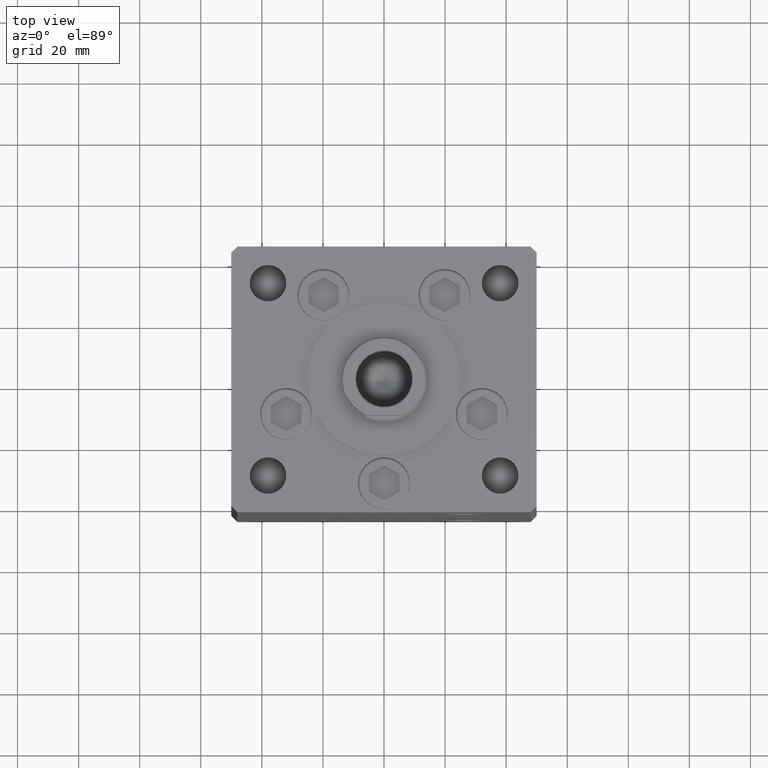
[diagram: clean part render]
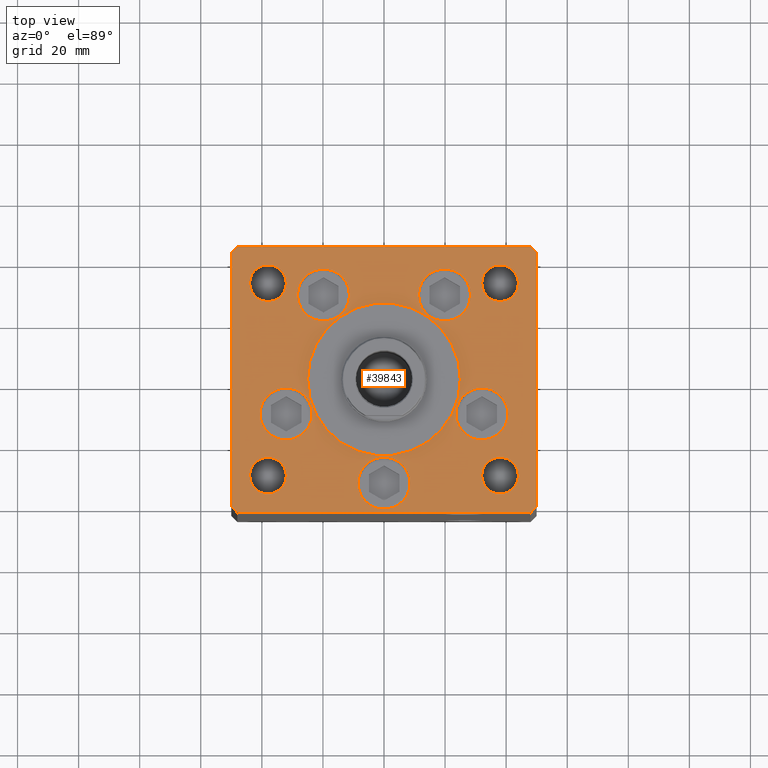
[diagram: same view with one face highlighted and labeled with its STEP entity id]
A machine part, top view. The second image highlights one B-rep face of the part: STEP entity #39843.
In plain terms, the highlighted planar face has unit normal (0, 0, 1).
Its self-contained STEP definition (entity closure, byte-faithful):
#237 = DIRECTION ( 'NONE',  ( 0.000000000000000000, 0.000000000000000000, 1.000000000000000000 ) ) ;
#358 = DIRECTION ( 'NONE',  ( 0.000000000000000000, 0.000000000000000000, 1.000000000000000000 ) ) ;
#467 = DIRECTION ( 'NONE',  ( 1.000000000000000000, 0.000000000000000000, 0.000000000000000000 ) ) ;
#783 = EDGE_CURVE ( 'NONE', #24141, #19406, #25090, .T. ) ;
#1551 = VERTEX_POINT ( 'NONE', #32221 ) ;
#1784 = CARTESIAN_POINT ( 'NONE',  ( 50.00000000000000000, -41.49999999999992895, 0.000000000000000000 ) ) ;
#1835 = LINE ( 'NONE', #18417, #18398 ) ;
#1898 = VECTOR ( 'NONE', #38704, 1000.000000000000000 ) ;
#2047 = CIRCLE ( 'NONE', #35691, 6.000000000000005329 ) ;
#2401 = EDGE_CURVE ( 'NONE', #30728, #21808, #27422, .T. ) ;
#2408 = CARTESIAN_POINT ( 'NONE',  ( 48.00000000000000711, -43.49999999999992184, 0.000000000000000000 ) ) ;
#2455 = CARTESIAN_POINT ( 'NONE',  ( -38.00000000000000711, -31.50000000000000711, 0.000000000000000000 ) ) ;
#2869 = CIRCLE ( 'NONE', #50055, 8.500000000000000000 ) ;
#3229 = VECTOR ( 'NONE', #40095, 1000.000000000000000 ) ;
#3270 = EDGE_LOOP ( 'NONE', ( #20591, #15648 ) ) ;
#3396 = LINE ( 'NONE', #34534, #9443 ) ;
#3548 = AXIS2_PLACEMENT_3D ( 'NONE', #32058, #4632, #44206 ) ;
#3675 = FACE_OUTER_BOUND ( 'NONE', #42859, .T. ) ;
#3767 = CIRCLE ( 'NONE', #20613, 8.500000000000000000 ) ;
#3935 = DIRECTION ( 'NONE',  ( 1.000000000000000000, 0.000000000000000000, 0.000000000000000000 ) ) ;
#4183 = LINE ( 'NONE', #47975, #28261 ) ;
#4185 = DIRECTION ( 'NONE',  ( 0.000000000000000000, 0.000000000000000000, 1.000000000000000000 ) ) ;
#4380 = EDGE_LOOP ( 'NONE', ( #36210, #42004 ) ) ;
#4571 = ORIENTED_EDGE ( 'NONE', *, *, #11015, .T. ) ;
#4632 = DIRECTION ( 'NONE',  ( 0.000000000000000000, 0.000000000000000000, 1.000000000000000000 ) ) ;
#4772 = VERTEX_POINT ( 'NONE', #26479 ) ;
#4913 = ORIENTED_EDGE ( 'NONE', *, *, #25855, .T. ) ;
#5127 = DIRECTION ( 'NONE',  ( 0.000000000000000000, 0.000000000000000000, 1.000000000000000000 ) ) ;
#5147 = VERTEX_POINT ( 'NONE', #27183 ) ;
#5630 = EDGE_CURVE ( 'NONE', #8002, #7348, #19282, .T. ) ;
#6395 = ORIENTED_EDGE ( 'NONE', *, *, #22541, .T. ) ;
#6766 = DIRECTION ( 'NONE',  ( 0.000000000000000000, 0.000000000000000000, 1.000000000000000000 ) ) ;
#7066 = EDGE_CURVE ( 'NONE', #19919, #14560, #33682, .T. ) ;
#7348 = VERTEX_POINT ( 'NONE', #49382 ) ;
#7559 = LINE ( 'NONE', #7815, #1898 ) ;
#7731 = ORIENTED_EDGE ( 'NONE', *, *, #21234, .T. ) ;
#7815 = CARTESIAN_POINT ( 'NONE',  ( -50.00000000000000000, -41.50000000000004263, 0.000000000000000000 ) ) ;
#7879 = CARTESIAN_POINT ( 'NONE',  ( -38.00000000000000000, 31.50000000000000000, 0.000000000000000000 ) ) ;
#7906 = VECTOR ( 'NONE', #31118, 1000.000000000000114 ) ;
#8002 = VERTEX_POINT ( 'NONE', #47818 ) ;
#8127 = CARTESIAN_POINT ( 'NONE',  ( -44.00000000000001421, -31.50000000000000711, 0.000000000000000000 ) ) ;
#8134 = FACE_BOUND ( 'NONE', #4380, .T. ) ;
#8341 = ORIENTED_EDGE ( 'NONE', *, *, #49753, .T. ) ;
#8891 = DIRECTION ( 'NONE',  ( 0.000000000000000000, 0.000000000000000000, 1.000000000000000000 ) ) ;
#8913 = FACE_BOUND ( 'NONE', #38173, .T. ) ;
#9317 = DIRECTION ( 'NONE',  ( -1.000000000000000000, 0.000000000000000000, 0.000000000000000000 ) ) ;
#9443 = VECTOR ( 'NONE', #10775, 1000.000000000000000 ) ;
#9852 = DIRECTION ( 'NONE',  ( -0.000000000000000000, -0.000000000000000000, -1.000000000000000000 ) ) ;
#10116 = DIRECTION ( 'NONE',  ( -1.000000000000000000, 0.000000000000000000, 0.000000000000000000 ) ) ;
#10239 = DIRECTION ( 'NONE',  ( 0.000000000000000000, 0.000000000000000000, 1.000000000000000000 ) ) ;
#10554 = DIRECTION ( 'NONE',  ( 1.000000000000000000, 0.000000000000000000, 0.000000000000000000 ) ) ;
#10635 = CARTESIAN_POINT ( 'NONE',  ( 38.00000000000000711, -31.50000000000000711, 0.000000000000000000 ) ) ;
#10715 = CARTESIAN_POINT ( 'NONE',  ( 32.05550741379015989, -11.33333333333332860, 0.000000000000000000 ) ) ;
#10775 = DIRECTION ( 'NONE',  ( 1.000000000000000000, 1.156482317317871331E-15, 0.000000000000000000 ) ) ;
#11015 = EDGE_CURVE ( 'NONE', #43100, #30728, #19241, .T. ) ;
#11112 = VERTEX_POINT ( 'NONE', #16338 ) ;
#11432 = ORIENTED_EDGE ( 'NONE', *, *, #36565, .F. ) ;
#11471 = ORIENTED_EDGE ( 'NONE', *, *, #41066, .F. ) ;
#11635 = EDGE_CURVE ( 'NONE', #50967, #17357, #2869, .T. ) ;
#11720 = AXIS2_PLACEMENT_3D ( 'NONE', #10715, #6766, #15443 ) ;
#11792 = CIRCLE ( 'NONE', #41281, 8.500000000000000000 ) ;
#11828 = PLANE ( 'NONE',  #30363 ) ;
#11873 = CARTESIAN_POINT ( 'NONE',  ( -28.32068048781375325, 27.62499999999998934, 0.000000000000000000 ) ) ;
#12681 = CARTESIAN_POINT ( 'NONE',  ( 50.00000000000000000, 41.50000000000000711, 0.000000000000000000 ) ) ;
#12810 = CARTESIAN_POINT ( 'NONE',  ( 47.99999999999999289, 43.50000000000000000, 0.000000000000000000 ) ) ;
#12834 = EDGE_CURVE ( 'NONE', #48207, #26313, #49974, .T. ) ;
#12871 = FACE_BOUND ( 'NONE', #30193, .T. ) ;
#13003 = EDGE_LOOP ( 'NONE', ( #48429, #46745 ) ) ;
#13147 = CARTESIAN_POINT ( 'NONE',  ( 0.000000000000000000, -6.938893903907228378E-15, 0.000000000000000000 ) ) ;
#13290 = DIRECTION ( 'NONE',  ( 1.000000000000000000, 0.000000000000000000, 0.000000000000000000 ) ) ;
#13302 = VERTEX_POINT ( 'NONE', #15292 ) ;
#13323 = VERTEX_POINT ( 'NONE', #18735 ) ;
#13999 = VECTOR ( 'NONE', #28894, 1000.000000000000000 ) ;
#14068 = DIRECTION ( 'NONE',  ( -0.000000000000000000, -0.000000000000000000, -1.000000000000000000 ) ) ;
#14304 = ORIENTED_EDGE ( 'NONE', *, *, #47535, .T. ) ;
#14444 = EDGE_CURVE ( 'NONE', #11112, #49208, #15415, .T. ) ;
#14560 = VERTEX_POINT ( 'NONE', #45561 ) ;
#14880 = ORIENTED_EDGE ( 'NONE', *, *, #5630, .F. ) ;
#15080 = CARTESIAN_POINT ( 'NONE',  ( 0.000000000000000000, -6.938893903907228378E-15, 0.000000000000000000 ) ) ;
#15286 = DIRECTION ( 'NONE',  ( 0.000000000000000000, 0.000000000000000000, 1.000000000000000000 ) ) ;
#15292 = CARTESIAN_POINT ( 'NONE',  ( -8.500000000000000000, -34.00000000000000000, 0.000000000000000000 ) ) ;
#15339 = DIRECTION ( 'NONE',  ( 1.000000000000000000, 0.000000000000000000, 0.000000000000000000 ) ) ;
#15402 = DIRECTION ( 'NONE',  ( 0.000000000000000000, 0.000000000000000000, 1.000000000000000000 ) ) ;
#15415 = CIRCLE ( 'NONE', #18809, 8.500000000000000000 ) ;
#15443 = DIRECTION ( 'NONE',  ( 1.000000000000000000, 0.000000000000000000, 0.000000000000000000 ) ) ;
#15648 = ORIENTED_EDGE ( 'NONE', *, *, #783, .F. ) ;
#15780 = DIRECTION ( 'NONE',  ( -0.000000000000000000, 0.000000000000000000, 1.000000000000000000 ) ) ;
#15931 = EDGE_CURVE ( 'NONE', #23175, #32980, #2047, .T. ) ;
#15935 = EDGE_CURVE ( 'NONE', #43349, #48165, #33166, .T. ) ;
#16309 = DIRECTION ( 'NONE',  ( -0.7071067811865536790, -0.7071067811865414665, 0.000000000000000000 ) ) ;
#16338 = CARTESIAN_POINT ( 'NONE',  ( -23.55550741379015989, -11.33333333333332860, 0.000000000000000000 ) ) ;
#16566 = ORIENTED_EDGE ( 'NONE', *, *, #14444, .F. ) ;
#16625 = CARTESIAN_POINT ( 'NONE',  ( 44.00000000000000000, 31.50000000000000000, 0.000000000000000000 ) ) ;
#16806 = CIRCLE ( 'NONE', #33649, 5.999999999999998224 ) ;
#16832 = DIRECTION ( 'NONE',  ( -0.000000000000000000, -0.000000000000000000, -1.000000000000000000 ) ) ;
#16976 = DIRECTION ( 'NONE',  ( -0.000000000000000000, -0.000000000000000000, -1.000000000000000000 ) ) ;
#16985 = CARTESIAN_POINT ( 'NONE',  ( 38.00000000000000000, 31.50000000000000000, 0.000000000000000000 ) ) ;
#17357 = VERTEX_POINT ( 'NONE', #11873 ) ;
#17519 = AXIS2_PLACEMENT_3D ( 'NONE', #44043, #15286, #27677 ) ;
#17840 = ORIENTED_EDGE ( 'NONE', *, *, #12834, .F. ) ;
#17883 = DIRECTION ( 'NONE',  ( 1.000000000000000000, 0.000000000000000000, 0.000000000000000000 ) ) ;
#18398 = VECTOR ( 'NONE', #41651, 999.9999999999998863 ) ;
#18417 = CARTESIAN_POINT ( 'NONE',  ( 50.00000000000000000, 41.50000000000000711, 0.000000000000000000 ) ) ;
#18682 = VECTOR ( 'NONE', #35206, 1000.000000000000000 ) ;
#18735 = CARTESIAN_POINT ( 'NONE',  ( -50.00000000000000000, -41.50000000000004263, 0.000000000000000000 ) ) ;
#18792 = EDGE_CURVE ( 'NONE', #49208, #11112, #3767, .T. ) ;
#18809 = AXIS2_PLACEMENT_3D ( 'NONE', #40289, #20496, #467 ) ;
#19058 = AXIS2_PLACEMENT_3D ( 'NONE', #13147, #49300, #17883 ) ;
#19241 = LINE ( 'NONE', #2408, #7906 ) ;
#19282 = CIRCLE ( 'NONE', #11720, 8.500000000000000000 ) ;
#19406 = VERTEX_POINT ( 'NONE', #23296 ) ;
#19677 = AXIS2_PLACEMENT_3D ( 'NONE', #26719, #14068, #22254 ) ;
#19744 = FACE_BOUND ( 'NONE', #34104, .T. ) ;
#19890 = DIRECTION ( 'NONE',  ( 0.000000000000000000, 0.000000000000000000, 1.000000000000000000 ) ) ;
#19891 = CIRCLE ( 'NONE', #19058, 25.00000000000000000 ) ;
#19919 = VERTEX_POINT ( 'NONE', #8127 ) ;
#20496 = DIRECTION ( 'NONE',  ( 0.000000000000000000, 0.000000000000000000, 1.000000000000000000 ) ) ;
#20591 = ORIENTED_EDGE ( 'NONE', *, *, #23187, .F. ) ;
#20613 = AXIS2_PLACEMENT_3D ( 'NONE', #33422, #8891, #48476 ) ;
#20782 = FACE_BOUND ( 'NONE', #3270, .T. ) ;
#20836 = CARTESIAN_POINT ( 'NONE',  ( -44.00000000000000000, 31.50000000000000000, 0.000000000000000000 ) ) ;
#20877 = AXIS2_PLACEMENT_3D ( 'NONE', #15080, #35402, #15339 ) ;
#21029 = ORIENTED_EDGE ( 'NONE', *, *, #28852, .T. ) ;
#21234 = EDGE_CURVE ( 'NONE', #4772, #1551, #4183, .T. ) ;
#21808 = VERTEX_POINT ( 'NONE', #12681 ) ;
#21856 = CARTESIAN_POINT ( 'NONE',  ( -38.00000000000000711, -31.50000000000000711, 0.000000000000000000 ) ) ;
#22171 = CARTESIAN_POINT ( 'NONE',  ( 19.82068048781374969, 27.62499999999998934, 0.000000000000000000 ) ) ;
#22254 = DIRECTION ( 'NONE',  ( -1.000000000000000000, 0.000000000000000000, 0.000000000000000000 ) ) ;
#22299 = DIRECTION ( 'NONE',  ( 1.000000000000000000, 0.000000000000000000, 0.000000000000000000 ) ) ;
#22541 = EDGE_CURVE ( 'NONE', #49991, #4772, #50007, .T. ) ;
#22867 = AXIS2_PLACEMENT_3D ( 'NONE', #22171, #39559, #10554 ) ;
#23175 = VERTEX_POINT ( 'NONE', #29227 ) ;
#23187 = EDGE_CURVE ( 'NONE', #19406, #24141, #19891, .T. ) ;
#23296 = CARTESIAN_POINT ( 'NONE',  ( -25.00000000000000000, -6.938893903907228378E-15, 0.000000000000000000 ) ) ;
#23553 = ORIENTED_EDGE ( 'NONE', *, *, #2401, .T. ) ;
#23649 = CARTESIAN_POINT ( 'NONE',  ( 48.00000000000000711, -43.49999999999992184, 0.000000000000000000 ) ) ;
#24141 = VERTEX_POINT ( 'NONE', #26496 ) ;
#24216 = CARTESIAN_POINT ( 'NONE',  ( 0.000000000000000000, 0.000000000000000000, 0.000000000000000000 ) ) ;
#24982 = ORIENTED_EDGE ( 'NONE', *, *, #42557, .F. ) ;
#25090 = CIRCLE ( 'NONE', #20877, 25.00000000000000000 ) ;
#25855 = EDGE_CURVE ( 'NONE', #32980, #23175, #29272, .T. ) ;
#25908 = ORIENTED_EDGE ( 'NONE', *, *, #7066, .F. ) ;
#26278 = CIRCLE ( 'NONE', #3548, 8.500000000000000000 ) ;
#26313 = VERTEX_POINT ( 'NONE', #26640 ) ;
#26479 = CARTESIAN_POINT ( 'NONE',  ( -48.00000000000000000, 43.49999999999997158, 0.000000000000000000 ) ) ;
#26496 = CARTESIAN_POINT ( 'NONE',  ( 25.00000000000000000, -3.877276906038844941E-15, 0.000000000000000000 ) ) ;
#26640 = CARTESIAN_POINT ( 'NONE',  ( 32.00000000000000000, 31.50000000000000000, 0.000000000000000000 ) ) ;
#26719 = CARTESIAN_POINT ( 'NONE',  ( -38.00000000000000000, 31.50000000000000000, 0.000000000000000000 ) ) ;
#27119 = EDGE_LOOP ( 'NONE', ( #30243, #25908 ) ) ;
#27183 = CARTESIAN_POINT ( 'NONE',  ( -48.00000000000000711, -43.50000000000002842, 0.000000000000000000 ) ) ;
#27422 = LINE ( 'NONE', #51713, #3229 ) ;
#27677 = DIRECTION ( 'NONE',  ( 1.000000000000000000, 0.000000000000000000, 0.000000000000000000 ) ) ;
#27799 = CARTESIAN_POINT ( 'NONE',  ( -32.00000000000000000, 31.50000000000000000, 0.000000000000000000 ) ) ;
#27913 = DIRECTION ( 'NONE',  ( 1.000000000000000000, 0.000000000000000000, 0.000000000000000000 ) ) ;
#28261 = VECTOR ( 'NONE', #16309, 1000.000000000000000 ) ;
#28317 = CARTESIAN_POINT ( 'NONE',  ( 38.00000000000000711, -31.50000000000000711, 0.000000000000000000 ) ) ;
#28852 = EDGE_CURVE ( 'NONE', #21808, #49991, #1835, .T. ) ;
#28894 = DIRECTION ( 'NONE',  ( -1.000000000000000000, -2.891205793294678326E-16, 0.000000000000000000 ) ) ;
#28951 = FACE_BOUND ( 'NONE', #30899, .T. ) ;
#29227 = CARTESIAN_POINT ( 'NONE',  ( 32.00000000000000000, -31.50000000000000711, 0.000000000000000000 ) ) ;
#29272 = CIRCLE ( 'NONE', #38551, 6.000000000000005329 ) ;
#29301 = AXIS2_PLACEMENT_3D ( 'NONE', #21856, #10239, #46391 ) ;
#29586 = ORIENTED_EDGE ( 'NONE', *, *, #43322, .T. ) ;
#30193 = EDGE_LOOP ( 'NONE', ( #35242, #36493 ) ) ;
#30243 = ORIENTED_EDGE ( 'NONE', *, *, #33497, .F. ) ;
#30363 = AXIS2_PLACEMENT_3D ( 'NONE', #24216, #15780, #27913 ) ;
#30728 = VERTEX_POINT ( 'NONE', #1784 ) ;
#30899 = EDGE_LOOP ( 'NONE', ( #16566, #38751 ) ) ;
#31118 = DIRECTION ( 'NONE',  ( 0.7071067811865474617, 0.7071067811865474617, 0.000000000000000000 ) ) ;
#31226 = CARTESIAN_POINT ( 'NONE',  ( 19.82068048781374969, 27.62499999999998934, 0.000000000000000000 ) ) ;
#32058 = CARTESIAN_POINT ( 'NONE',  ( 32.05550741379015989, -11.33333333333332860, 0.000000000000000000 ) ) ;
#32221 = CARTESIAN_POINT ( 'NONE',  ( -50.00000000000000711, 41.49999999999999289, 0.000000000000000000 ) ) ;
#32917 = FACE_BOUND ( 'NONE', #13003, .T. ) ;
#32960 = CIRCLE ( 'NONE', #22867, 8.500000000000000000 ) ;
#32980 = VERTEX_POINT ( 'NONE', #51509 ) ;
#33166 = CIRCLE ( 'NONE', #19677, 5.999999999999998224 ) ;
#33219 = EDGE_CURVE ( 'NONE', #13302, #42187, #42792, .T. ) ;
#33422 = CARTESIAN_POINT ( 'NONE',  ( -32.05550741379015989, -11.33333333333332860, 0.000000000000000000 ) ) ;
#33497 = EDGE_CURVE ( 'NONE', #14560, #19919, #38583, .T. ) ;
#33649 = AXIS2_PLACEMENT_3D ( 'NONE', #43834, #40144, #48848 ) ;
#33653 = AXIS2_PLACEMENT_3D ( 'NONE', #2455, #237, #3935 ) ;
#33682 = CIRCLE ( 'NONE', #33653, 6.000000000000005329 ) ;
#34040 = CARTESIAN_POINT ( 'NONE',  ( -40.55550741379015989, -11.33333333333332682, 0.000000000000000000 ) ) ;
#34104 = EDGE_LOOP ( 'NONE', ( #4913, #35387 ) ) ;
#34534 = CARTESIAN_POINT ( 'NONE',  ( -48.00000000000000711, -43.50000000000002842, 0.000000000000000000 ) ) ;
#35087 = EDGE_CURVE ( 'NONE', #42187, #13302, #44564, .T. ) ;
#35206 = DIRECTION ( 'NONE',  ( 8.360113137237620037E-17, -1.000000000000000000, 0.000000000000000000 ) ) ;
#35242 = ORIENTED_EDGE ( 'NONE', *, *, #35087, .F. ) ;
#35387 = ORIENTED_EDGE ( 'NONE', *, *, #15931, .T. ) ;
#35402 = DIRECTION ( 'NONE',  ( 0.000000000000000000, 0.000000000000000000, 1.000000000000000000 ) ) ;
#35414 = CIRCLE ( 'NONE', #44681, 5.999999999999998224 ) ;
#35691 = AXIS2_PLACEMENT_3D ( 'NONE', #10635, #9852, #10116 ) ;
#35952 = EDGE_LOOP ( 'NONE', ( #36428, #14880 ) ) ;
#36100 = CARTESIAN_POINT ( 'NONE',  ( 0.000000000000000000, -34.00000000000000000, 0.000000000000000000 ) ) ;
#36210 = ORIENTED_EDGE ( 'NONE', *, *, #15935, .T. ) ;
#36309 = CIRCLE ( 'NONE', #37979, 8.500000000000000000 ) ;
#36428 = ORIENTED_EDGE ( 'NONE', *, *, #48724, .F. ) ;
#36493 = ORIENTED_EDGE ( 'NONE', *, *, #33219, .F. ) ;
#36511 = DIRECTION ( 'NONE',  ( 1.000000000000000000, 0.000000000000000000, 0.000000000000000000 ) ) ;
#36542 = VERTEX_POINT ( 'NONE', #40659 ) ;
#36565 = EDGE_CURVE ( 'NONE', #26313, #48207, #16806, .T. ) ;
#36989 = AXIS2_PLACEMENT_3D ( 'NONE', #36100, #4185, #48234 ) ;
#37979 = AXIS2_PLACEMENT_3D ( 'NONE', #31226, #15402, #22299 ) ;
#38173 = EDGE_LOOP ( 'NONE', ( #17840, #11432 ) ) ;
#38551 = AXIS2_PLACEMENT_3D ( 'NONE', #28317, #16976, #9317 ) ;
#38583 = CIRCLE ( 'NONE', #29301, 6.000000000000005329 ) ;
#38704 = DIRECTION ( 'NONE',  ( 0.7071067811865487940, -0.7071067811865463515, 0.000000000000000000 ) ) ;
#38751 = ORIENTED_EDGE ( 'NONE', *, *, #18792, .F. ) ;
#39244 = EDGE_CURVE ( 'NONE', #17357, #50967, #11792, .T. ) ;
#39559 = DIRECTION ( 'NONE',  ( 0.000000000000000000, 0.000000000000000000, 1.000000000000000000 ) ) ;
#39804 = FACE_BOUND ( 'NONE', #27119, .T. ) ;
#39810 = EDGE_CURVE ( 'NONE', #48165, #43349, #35414, .T. ) ;
#39843 = ADVANCED_FACE ( 'NONE', ( #20782, #32917, #44276, #49021, #12871, #28951, #8134, #8913, #39804, #3675, #19744 ), #11828, .T. ) ;
#40095 = DIRECTION ( 'NONE',  ( 0.000000000000000000, 1.000000000000000000, 0.000000000000000000 ) ) ;
#40144 = DIRECTION ( 'NONE',  ( 0.000000000000000000, 0.000000000000000000, 1.000000000000000000 ) ) ;
#40289 = CARTESIAN_POINT ( 'NONE',  ( -32.05550741379015989, -11.33333333333332860, 0.000000000000000000 ) ) ;
#40442 = CARTESIAN_POINT ( 'NONE',  ( -19.82068048781374969, 27.62499999999998934, 0.000000000000000000 ) ) ;
#40659 = CARTESIAN_POINT ( 'NONE',  ( 28.32068048781375325, 27.62499999999998934, 0.000000000000000000 ) ) ;
#41025 = VERTEX_POINT ( 'NONE', #45791 ) ;
#41066 = EDGE_CURVE ( 'NONE', #41025, #36542, #36309, .T. ) ;
#41079 = EDGE_LOOP ( 'NONE', ( #24982, #11471 ) ) ;
#41281 = AXIS2_PLACEMENT_3D ( 'NONE', #40442, #358, #49407 ) ;
#41651 = DIRECTION ( 'NONE',  ( -0.7071067811865512365, 0.7071067811865439090, 0.000000000000000000 ) ) ;
#42004 = ORIENTED_EDGE ( 'NONE', *, *, #39810, .T. ) ;
#42187 = VERTEX_POINT ( 'NONE', #44740 ) ;
#42557 = EDGE_CURVE ( 'NONE', #36542, #41025, #32960, .T. ) ;
#42792 = CIRCLE ( 'NONE', #17519, 8.500000000000000000 ) ;
#42859 = EDGE_LOOP ( 'NONE', ( #8341, #14304, #4571, #23553, #21029, #6395, #7731, #29586 ) ) ;
#43100 = VERTEX_POINT ( 'NONE', #23649 ) ;
#43116 = CARTESIAN_POINT ( 'NONE',  ( -50.00000000000000711, 41.49999999999999289, 0.000000000000000000 ) ) ;
#43214 = AXIS2_PLACEMENT_3D ( 'NONE', #16985, #19890, #36511 ) ;
#43322 = EDGE_CURVE ( 'NONE', #1551, #13323, #46823, .T. ) ;
#43349 = VERTEX_POINT ( 'NONE', #27799 ) ;
#43834 = CARTESIAN_POINT ( 'NONE',  ( 38.00000000000000000, 31.50000000000000000, 0.000000000000000000 ) ) ;
#44043 = CARTESIAN_POINT ( 'NONE',  ( 0.000000000000000000, -34.00000000000000000, 0.000000000000000000 ) ) ;
#44206 = DIRECTION ( 'NONE',  ( 1.000000000000000000, 0.000000000000000000, 0.000000000000000000 ) ) ;
#44276 = FACE_BOUND ( 'NONE', #41079, .T. ) ;
#44564 = CIRCLE ( 'NONE', #36989, 8.500000000000000000 ) ;
#44681 = AXIS2_PLACEMENT_3D ( 'NONE', #7879, #16832, #45061 ) ;
#44740 = CARTESIAN_POINT ( 'NONE',  ( 8.500000000000000000, -34.00000000000000000, 0.000000000000000000 ) ) ;
#45061 = DIRECTION ( 'NONE',  ( -1.000000000000000000, 0.000000000000000000, 0.000000000000000000 ) ) ;
#45561 = CARTESIAN_POINT ( 'NONE',  ( -32.00000000000000000, -31.50000000000000711, 0.000000000000000000 ) ) ;
#45791 = CARTESIAN_POINT ( 'NONE',  ( 11.32068048781375147, 27.62499999999998934, 0.000000000000000000 ) ) ;
#46391 = DIRECTION ( 'NONE',  ( 1.000000000000000000, 0.000000000000000000, 0.000000000000000000 ) ) ;
#46458 = CARTESIAN_POINT ( 'NONE',  ( -11.32068048781375147, 27.62499999999998934, 0.000000000000000000 ) ) ;
#46745 = ORIENTED_EDGE ( 'NONE', *, *, #39244, .F. ) ;
#46823 = LINE ( 'NONE', #43116, #18682 ) ;
#47535 = EDGE_CURVE ( 'NONE', #5147, #43100, #3396, .T. ) ;
#47818 = CARTESIAN_POINT ( 'NONE',  ( 23.55550741379015633, -11.33333333333332682, 0.000000000000000000 ) ) ;
#47975 = CARTESIAN_POINT ( 'NONE',  ( -48.00000000000000000, 43.49999999999997158, 0.000000000000000000 ) ) ;
#48112 = CARTESIAN_POINT ( 'NONE',  ( 47.99999999999999289, 43.50000000000000000, 0.000000000000000000 ) ) ;
#48165 = VERTEX_POINT ( 'NONE', #20836 ) ;
#48207 = VERTEX_POINT ( 'NONE', #16625 ) ;
#48234 = DIRECTION ( 'NONE',  ( 1.000000000000000000, 0.000000000000000000, 0.000000000000000000 ) ) ;
#48429 = ORIENTED_EDGE ( 'NONE', *, *, #11635, .F. ) ;
#48476 = DIRECTION ( 'NONE',  ( 1.000000000000000000, 0.000000000000000000, 0.000000000000000000 ) ) ;
#48724 = EDGE_CURVE ( 'NONE', #7348, #8002, #26278, .T. ) ;
#48848 = DIRECTION ( 'NONE',  ( 1.000000000000000000, 0.000000000000000000, 0.000000000000000000 ) ) ;
#49021 = FACE_BOUND ( 'NONE', #35952, .T. ) ;
#49208 = VERTEX_POINT ( 'NONE', #34040 ) ;
#49300 = DIRECTION ( 'NONE',  ( 0.000000000000000000, 0.000000000000000000, 1.000000000000000000 ) ) ;
#49382 = CARTESIAN_POINT ( 'NONE',  ( 40.55550741379015989, -11.33333333333332860, 0.000000000000000000 ) ) ;
#49407 = DIRECTION ( 'NONE',  ( 1.000000000000000000, 0.000000000000000000, 0.000000000000000000 ) ) ;
#49753 = EDGE_CURVE ( 'NONE', #13323, #5147, #7559, .T. ) ;
#49968 = CARTESIAN_POINT ( 'NONE',  ( -19.82068048781374969, 27.62499999999998934, 0.000000000000000000 ) ) ;
#49974 = CIRCLE ( 'NONE', #43214, 5.999999999999998224 ) ;
#49991 = VERTEX_POINT ( 'NONE', #48112 ) ;
#50007 = LINE ( 'NONE', #12810, #13999 ) ;
#50055 = AXIS2_PLACEMENT_3D ( 'NONE', #49968, #5127, #13290 ) ;
#50967 = VERTEX_POINT ( 'NONE', #46458 ) ;
#51509 = CARTESIAN_POINT ( 'NONE',  ( 44.00000000000001421, -31.50000000000000711, 0.000000000000000000 ) ) ;
#51713 = CARTESIAN_POINT ( 'NONE',  ( 50.00000000000000000, -41.49999999999992895, 0.000000000000000000 ) ) ;